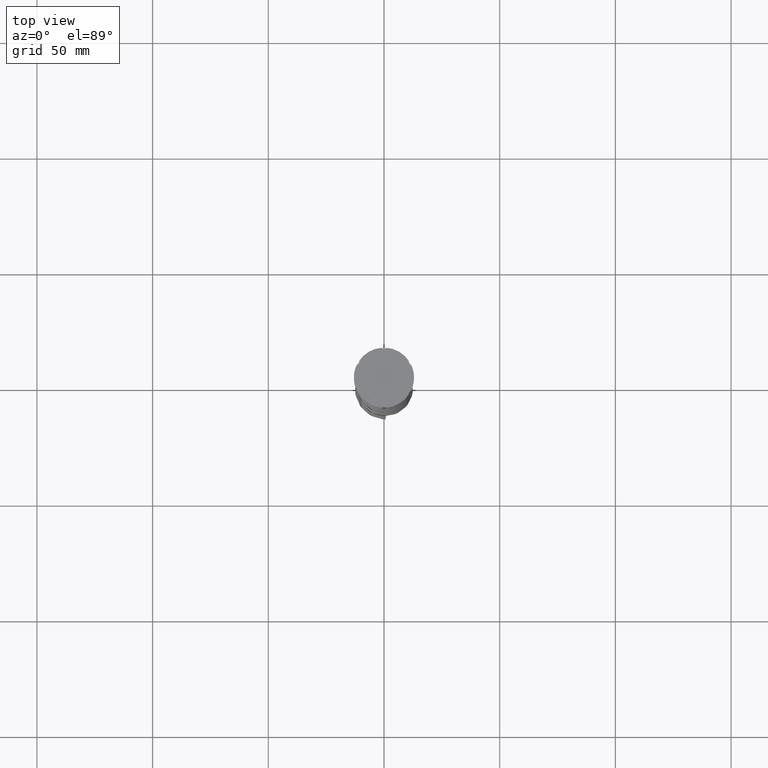
[diagram: clean part render]
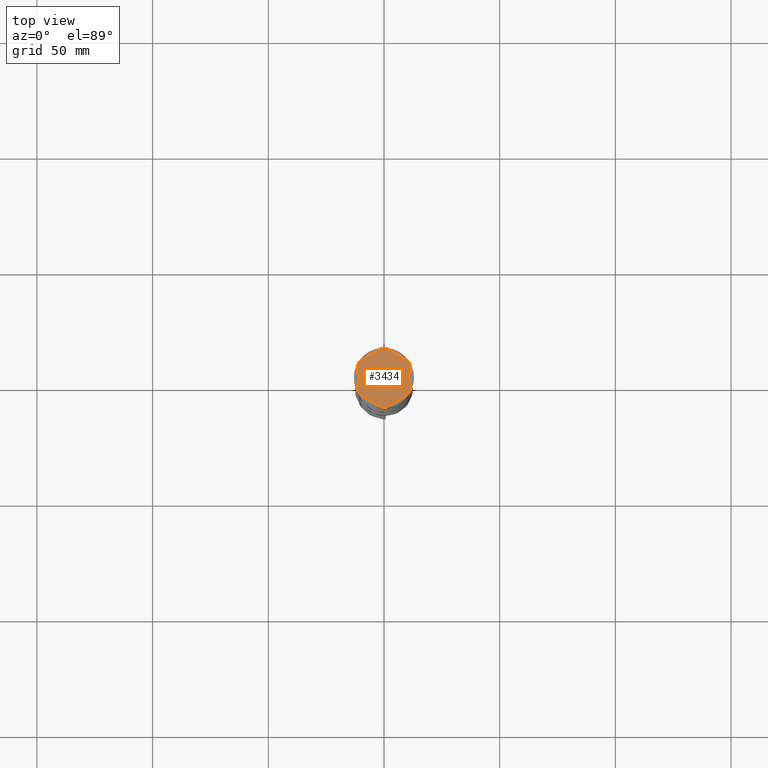
[diagram: same view with one face highlighted and labeled with its STEP entity id]
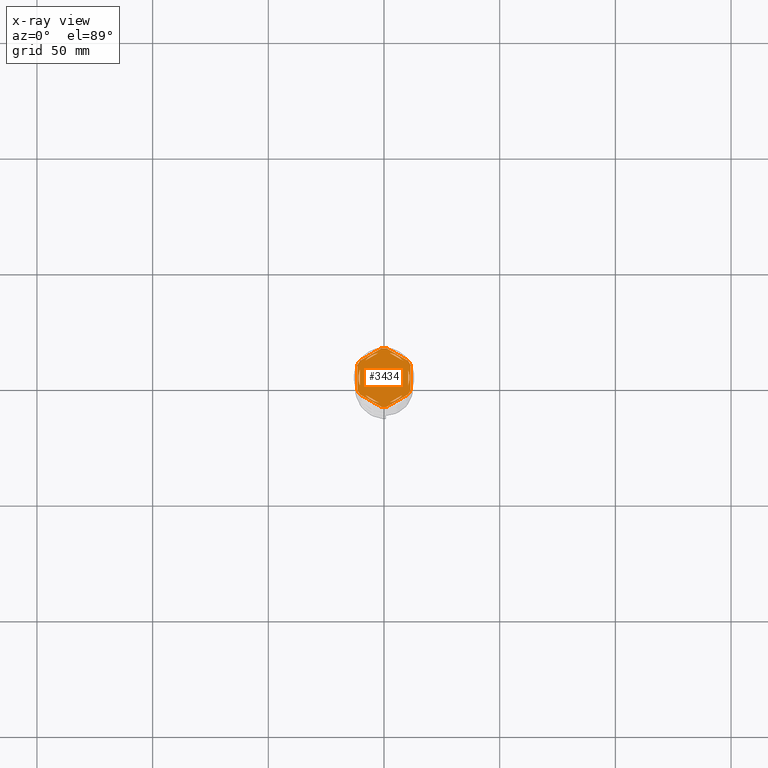
[diagram: x-ray of the same camera — body ghosted, the highlighted face saturated]
A machine part, top view. The second image highlights one B-rep face of the part: STEP entity #3434.
The next image is the same camera in x-ray: the body ghosted, the highlighted face saturated — about 0% of this face is hidden behind the body in this view.
In plain terms, the highlighted planar face has unit normal (0, 0, 1).
Its self-contained STEP definition (entity closure, byte-faithful):
#71 = EDGE_CURVE ( 'NONE', #2179, #955, #2401, .T. ) ;
#83 = CARTESIAN_POINT ( 'NONE',  ( -11.50000000000000000, -6.639528095680696573, -1.000000000000000000 ) ) ;
#108 = DIRECTION ( 'NONE',  ( -0.8660254037844385966, -0.5000000000000001110, 0.000000000000000000 ) ) ;
#111 = CIRCLE ( 'NONE', #1790, 12.69999999999999929 ) ;
#115 = AXIS2_PLACEMENT_3D ( 'NONE', #4085, #3760, #965 ) ;
#132 = VERTEX_POINT ( 'NONE', #1454 ) ;
#133 = DIRECTION ( 'NONE',  ( 0.000000000000000000, 0.000000000000000000, 1.000000000000000000 ) ) ;
#151 = AXIS2_PLACEMENT_3D ( 'NONE', #2047, #4432, #1984 ) ;
#157 = ORIENTED_EDGE ( 'NONE', *, *, #4389, .T. ) ;
#171 = VERTEX_POINT ( 'NONE', #2535 ) ;
#185 = ORIENTED_EDGE ( 'NONE', *, *, #2726, .F. ) ;
#209 = VERTEX_POINT ( 'NONE', #3569 ) ;
#220 = DIRECTION ( 'NONE',  ( 1.000000000000000000, 0.000000000000000000, 0.000000000000000000 ) ) ;
#289 = VERTEX_POINT ( 'NONE', #4092 ) ;
#324 = VERTEX_POINT ( 'NONE', #718 ) ;
#346 = EDGE_CURVE ( 'NONE', #324, #3405, #652, .T. ) ;
#368 = ORIENTED_EDGE ( 'NONE', *, *, #2586, .T. ) ;
#386 = CARTESIAN_POINT ( 'NONE',  ( 11.49999999999999822, 5.388877434122992582, -1.000000000000000000 ) ) ;
#429 = ORIENTED_EDGE ( 'NONE', *, *, #487, .T. ) ;
#453 = DIRECTION ( 'NONE',  ( 0.8660254037844387076, -0.4999999999999999445, 0.000000000000000000 ) ) ;
#487 = EDGE_CURVE ( 'NONE', #571, #209, #1815, .T. ) ;
#489 = AXIS2_PLACEMENT_3D ( 'NONE', #3202, #2753, #3493 ) ;
#511 = CIRCLE ( 'NONE', #4211, 11.00000000000000000 ) ;
#525 = FACE_BOUND ( 'NONE', #3260, .T. ) ;
#526 = VERTEX_POINT ( 'NONE', #1879 ) ;
#530 = ORIENTED_EDGE ( 'NONE', *, *, #606, .F. ) ;
#555 = CARTESIAN_POINT ( 'NONE',  ( 0.000000000000000000, 0.000000000000000000, -1.000000000000000000 ) ) ;
#571 = VERTEX_POINT ( 'NONE', #2702 ) ;
#577 = VERTEX_POINT ( 'NONE', #3041 ) ;
#582 = EDGE_CURVE ( 'NONE', #4305, #526, #2907, .T. ) ;
#586 = VECTOR ( 'NONE', #1866, 1000.000000000000227 ) ;
#606 = EDGE_CURVE ( 'NONE', #2362, #3405, #1673, .T. ) ;
#644 = DIRECTION ( 'NONE',  ( 0.000000000000000000, 1.000000000000000000, 0.000000000000000000 ) ) ;
#652 = LINE ( 'NONE', #1680, #2834 ) ;
#659 = AXIS2_PLACEMENT_3D ( 'NONE', #1231, #1548, #4047 ) ;
#692 = LINE ( 'NONE', #4491, #3280 ) ;
#702 = CARTESIAN_POINT ( 'NONE',  ( -10.41690475583121334, -7.264853426459548125, -1.000000000000000000 ) ) ;
#718 = CARTESIAN_POINT ( 'NONE',  ( 10.41690475583121156, 7.264853426459550789, -1.000000000000000000 ) ) ;
#726 = ORIENTED_EDGE ( 'NONE', *, *, #1944, .F. ) ;
#743 = EDGE_CURVE ( 'NONE', #4154, #577, #1897, .T. ) ;
#784 = VERTEX_POINT ( 'NONE', #2293 ) ;
#789 = CARTESIAN_POINT ( 'NONE',  ( -10.49999999999999822, -3.278719262151000624, -1.000000000000000888 ) ) ;
#798 = LINE ( 'NONE', #4300, #4176 ) ;
#832 = ORIENTED_EDGE ( 'NONE', *, *, #3743, .F. ) ;
#860 = AXIS2_PLACEMENT_3D ( 'NONE', #2115, #1399, #3836 ) ;
#868 = CARTESIAN_POINT ( 'NONE',  ( 2.410545827099865868, -10.73262637081210791, -1.000000000000000888 ) ) ;
#883 = AXIS2_PLACEMENT_3D ( 'NONE', #3703, #4385, #951 ) ;
#892 = ORIENTED_EDGE ( 'NONE', *, *, #1299, .T. ) ;
#893 = CARTESIAN_POINT ( 'NONE',  ( 1.083095244168781557, 12.65373086058254160, -1.000000000000000000 ) ) ;
#951 = DIRECTION ( 'NONE',  ( 1.000000000000000000, -1.776356839400250465E-14, 0.000000000000000000 ) ) ;
#955 = VERTEX_POINT ( 'NONE', #3205 ) ;
#965 = DIRECTION ( 'NONE',  ( 1.000000000000000000, 0.000000000000000000, 0.000000000000000000 ) ) ;
#968 = EDGE_CURVE ( 'NONE', #3091, #1061, #3251, .T. ) ;
#992 = CIRCLE ( 'NONE', #4477, 11.00000000000000000 ) ;
#1020 = CIRCLE ( 'NONE', #151, 12.69999999999999929 ) ;
#1061 = VERTEX_POINT ( 'NONE', #3978 ) ;
#1093 = DIRECTION ( 'NONE',  ( -0.000000000000000000, -0.000000000000000000, -1.000000000000000000 ) ) ;
#1100 = EDGE_CURVE ( 'NONE', #132, #4025, #511, .T. ) ;
#1143 = ORIENTED_EDGE ( 'NONE', *, *, #2023, .F. ) ;
#1161 = FACE_BOUND ( 'NONE', #3771, .T. ) ;
#1163 = LINE ( 'NONE', #2146, #1355 ) ;
#1166 = EDGE_CURVE ( 'NONE', #324, #3183, #1604, .T. ) ;
#1228 = EDGE_LOOP ( 'NONE', ( #4156, #3704 ) ) ;
#1231 = CARTESIAN_POINT ( 'NONE',  ( 0.000000000000000000, 0.000000000000000000, -1.000000000000000000 ) ) ;
#1272 = EDGE_CURVE ( 'NONE', #526, #4305, #4306, .T. ) ;
#1299 = EDGE_CURVE ( 'NONE', #3227, #3183, #3215, .T. ) ;
#1355 = VECTOR ( 'NONE', #2196, 999.9999999999998863 ) ;
#1368 = LINE ( 'NONE', #1649, #2526 ) ;
#1390 = CARTESIAN_POINT ( 'NONE',  ( 0.000000000000000000, 0.000000000000000000, -1.000000000000000000 ) ) ;
#1399 = DIRECTION ( 'NONE',  ( 0.000000000000000000, 0.000000000000000000, 1.000000000000000000 ) ) ;
#1439 = DIRECTION ( 'NONE',  ( 0.8660254037844385966, 0.5000000000000001110, -0.000000000000000000 ) ) ;
#1452 = ORIENTED_EDGE ( 'NONE', *, *, #3768, .F. ) ;
#1454 = CARTESIAN_POINT ( 'NONE',  ( 8.089454172900138573, 7.453907108661105063, -1.000000000000000888 ) ) ;
#1459 = CARTESIAN_POINT ( 'NONE',  ( 10.49999999999999289, -6.062177826491073063, -1.000000000000000888 ) ) ;
#1523 = DIRECTION ( 'NONE',  ( 1.000000000000000000, 0.000000000000000000, -0.000000000000000000 ) ) ;
#1534 = CARTESIAN_POINT ( 'NONE',  ( -1.734723475976807094E-15, 12.12435565298214080, -1.000000000000000888 ) ) ;
#1548 = DIRECTION ( 'NONE',  ( 0.000000000000000000, 0.000000000000000000, 1.000000000000000000 ) ) ;
#1587 = CARTESIAN_POINT ( 'NONE',  ( 10.49999999999999467, 3.278719262151012170, -1.000000000000000888 ) ) ;
#1591 = ORIENTED_EDGE ( 'NONE', *, *, #2797, .F. ) ;
#1602 = DIRECTION ( 'NONE',  ( 1.000000000000000000, 1.243449787580175325E-14, 0.000000000000000000 ) ) ;
#1604 = CIRCLE ( 'NONE', #883, 12.69999999999999929 ) ;
#1605 = ORIENTED_EDGE ( 'NONE', *, *, #346, .T. ) ;
#1649 = CARTESIAN_POINT ( 'NONE',  ( -10.49999999999999822, 6.062177826491068622, -1.000000000000000888 ) ) ;
#1668 = DIRECTION ( 'NONE',  ( 0.000000000000000000, 0.000000000000000000, 1.000000000000000000 ) ) ;
#1673 = CIRCLE ( 'NONE', #1969, 12.69999999999999929 ) ;
#1680 = CARTESIAN_POINT ( 'NONE',  ( 11.50000000000000000, 6.639528095680698350, -1.000000000000000000 ) ) ;
#1726 = VERTEX_POINT ( 'NONE', #3096 ) ;
#1790 = AXIS2_PLACEMENT_3D ( 'NONE', #1390, #2785, #220 ) ;
#1815 = LINE ( 'NONE', #4172, #3844 ) ;
#1822 = CARTESIAN_POINT ( 'NONE',  ( 11.49999999999999822, -5.388877434122996135, -1.000000000000000000 ) ) ;
#1830 = EDGE_CURVE ( 'NONE', #2377, #3748, #4364, .T. ) ;
#1836 = ORIENTED_EDGE ( 'NONE', *, *, #1100, .F. ) ;
#1866 = DIRECTION ( 'NONE',  ( 0.8660254037844387076, -0.4999999999999997780, 0.000000000000000000 ) ) ;
#1868 = FACE_BOUND ( 'NONE', #3101, .T. ) ;
#1879 = CARTESIAN_POINT ( 'NONE',  ( -8.089454172900135021, 7.453907108661106840, -1.000000000000000888 ) ) ;
#1897 = LINE ( 'NONE', #1459, #3774 ) ;
#1944 = EDGE_CURVE ( 'NONE', #3227, #209, #1020, .T. ) ;
#1958 = DIRECTION ( 'NONE',  ( 1.000000000000000000, 0.000000000000000000, 0.000000000000000000 ) ) ;
#1969 = AXIS2_PLACEMENT_3D ( 'NONE', #555, #3735, #1602 ) ;
#1984 = DIRECTION ( 'NONE',  ( 1.000000000000000000, 0.000000000000000000, 0.000000000000000000 ) ) ;
#1992 = ORIENTED_EDGE ( 'NONE', *, *, #582, .F. ) ;
#2023 = EDGE_CURVE ( 'NONE', #955, #2179, #692, .T. ) ;
#2047 = CARTESIAN_POINT ( 'NONE',  ( 0.000000000000000000, 0.000000000000000000, -1.000000000000000000 ) ) ;
#2083 = CIRCLE ( 'NONE', #115, 12.69999999999999929 ) ;
#2084 = LINE ( 'NONE', #3107, #4057 ) ;
#2087 = DIRECTION ( 'NONE',  ( -0.8660254037844388186, 0.4999999999999997224, 0.000000000000000000 ) ) ;
#2115 = CARTESIAN_POINT ( 'NONE',  ( 0.000000000000000000, 0.000000000000000000, -1.000000000000000000 ) ) ;
#2146 = CARTESIAN_POINT ( 'NONE',  ( -2.602085213965210642E-15, -12.12435565298214080, -1.000000000000000888 ) ) ;
#2177 = CARTESIAN_POINT ( 'NONE',  ( 11.49999999999999822, -6.639528095680694797, -1.000000000000000000 ) ) ;
#2179 = VERTEX_POINT ( 'NONE', #2642 ) ;
#2196 = DIRECTION ( 'NONE',  ( -0.8660254037844387076, -0.4999999999999999445, 0.000000000000000000 ) ) ;
#2215 = PLANE ( 'NONE',  #4190 ) ;
#2293 = CARTESIAN_POINT ( 'NONE',  ( -11.50000000000000000, 5.388877434122992582, -1.000000000000000000 ) ) ;
#2316 = DIRECTION ( 'NONE',  ( 0.000000000000000000, 0.000000000000000000, 1.000000000000000000 ) ) ;
#2319 = CIRCLE ( 'NONE', #489, 11.00000000000000000 ) ;
#2327 = DIRECTION ( 'NONE',  ( 0.000000000000000000, 0.000000000000000000, 1.000000000000000000 ) ) ;
#2362 = VERTEX_POINT ( 'NONE', #4265 ) ;
#2377 = VERTEX_POINT ( 'NONE', #3819 ) ;
#2391 = ORIENTED_EDGE ( 'NONE', *, *, #1830, .F. ) ;
#2401 = CIRCLE ( 'NONE', #4426, 11.00000000000000000 ) ;
#2445 = EDGE_CURVE ( 'NONE', #784, #1726, #111, .T. ) ;
#2473 = DIRECTION ( 'NONE',  ( 1.306360520641008153E-16, 1.000000000000000000, 0.000000000000000000 ) ) ;
#2500 = DIRECTION ( 'NONE',  ( 0.000000000000000000, -1.000000000000000000, 0.000000000000000000 ) ) ;
#2526 = VECTOR ( 'NONE', #644, 1000.000000000000000 ) ;
#2535 = CARTESIAN_POINT ( 'NONE',  ( 8.089454172900135021, -7.453907108661109504, -1.000000000000000888 ) ) ;
#2550 = CARTESIAN_POINT ( 'NONE',  ( 2.410545827099861871, 10.73262637081210791, -1.000000000000000888 ) ) ;
#2557 = FACE_BOUND ( 'NONE', #1228, .T. ) ;
#2560 = EDGE_CURVE ( 'NONE', #3091, #289, #4112, .T. ) ;
#2586 = EDGE_CURVE ( 'NONE', #2362, #1726, #798, .T. ) ;
#2605 = DIRECTION ( 'NONE',  ( 0.000000000000000000, 0.000000000000000000, 1.000000000000000000 ) ) ;
#2621 = EDGE_CURVE ( 'NONE', #171, #3373, #1163, .T. ) ;
#2642 = CARTESIAN_POINT ( 'NONE',  ( -8.089454172900133244, -7.453907108661111280, -1.000000000000000888 ) ) ;
#2664 = EDGE_CURVE ( 'NONE', #4025, #132, #3571, .T. ) ;
#2701 = AXIS2_PLACEMENT_3D ( 'NONE', #4374, #2316, #4034 ) ;
#2702 = CARTESIAN_POINT ( 'NONE',  ( 1.083095244168774673, -12.65373086058253982, -1.000000000000000000 ) ) ;
#2715 = DIRECTION ( 'NONE',  ( 0.8660254037844385966, 0.4999999999999999445, 0.000000000000000000 ) ) ;
#2726 = EDGE_CURVE ( 'NONE', #571, #1061, #2083, .T. ) ;
#2753 = DIRECTION ( 'NONE',  ( 0.000000000000000000, 0.000000000000000000, 1.000000000000000000 ) ) ;
#2785 = DIRECTION ( 'NONE',  ( -0.000000000000000000, -0.000000000000000000, -1.000000000000000000 ) ) ;
#2797 = EDGE_CURVE ( 'NONE', #3983, #2377, #1368, .T. ) ;
#2834 = VECTOR ( 'NONE', #2087, 1000.000000000000000 ) ;
#2836 = ORIENTED_EDGE ( 'NONE', *, *, #968, .T. ) ;
#2851 = DIRECTION ( 'NONE',  ( -1.430775808321104180E-16, -1.000000000000000000, 0.000000000000000000 ) ) ;
#2907 = CIRCLE ( 'NONE', #2701, 11.00000000000000000 ) ;
#3041 = CARTESIAN_POINT ( 'NONE',  ( 10.49999999999999467, -3.278719262151014835, -1.000000000000000888 ) ) ;
#3060 = DIRECTION ( 'NONE',  ( 1.000000000000000000, 0.000000000000000000, 0.000000000000000000 ) ) ;
#3091 = VERTEX_POINT ( 'NONE', #702 ) ;
#3096 = CARTESIAN_POINT ( 'NONE',  ( -10.41690475583121689, 7.264853426459546348, -1.000000000000000000 ) ) ;
#3101 = EDGE_LOOP ( 'NONE', ( #1992, #3439 ) ) ;
#3107 = CARTESIAN_POINT ( 'NONE',  ( -11.50000000000000000, 6.639528095680691244, -1.000000000000000000 ) ) ;
#3141 = CARTESIAN_POINT ( 'NONE',  ( 0.000000000000000000, 0.000000000000000000, -1.000000000000000000 ) ) ;
#3183 = VERTEX_POINT ( 'NONE', #386 ) ;
#3202 = CARTESIAN_POINT ( 'NONE',  ( 0.000000000000000000, 0.000000000000000000, -1.000000000000000000 ) ) ;
#3205 = CARTESIAN_POINT ( 'NONE',  ( -2.410545827099876082, -10.73262637081210435, -1.000000000000000888 ) ) ;
#3215 = LINE ( 'NONE', #2177, #3778 ) ;
#3227 = VERTEX_POINT ( 'NONE', #1822 ) ;
#3251 = LINE ( 'NONE', #83, #586 ) ;
#3254 = CARTESIAN_POINT ( 'NONE',  ( 0.000000000000000000, 0.000000000000000000, -1.000000000000000000 ) ) ;
#3260 = EDGE_LOOP ( 'NONE', ( #3835, #1143 ) ) ;
#3280 = VECTOR ( 'NONE', #4225, 1000.000000000000000 ) ;
#3310 = ORIENTED_EDGE ( 'NONE', *, *, #2445, .F. ) ;
#3318 = CARTESIAN_POINT ( 'NONE',  ( 0.000000000000000000, 0.000000000000000000, -1.000000000000000000 ) ) ;
#3373 = VERTEX_POINT ( 'NONE', #868 ) ;
#3384 = EDGE_CURVE ( 'NONE', #577, #4154, #992, .T. ) ;
#3392 = CARTESIAN_POINT ( 'NONE',  ( 0.000000000000000000, 0.000000000000000000, -1.000000000000000000 ) ) ;
#3405 = VERTEX_POINT ( 'NONE', #893 ) ;
#3434 = ADVANCED_FACE ( 'NONE', ( #1161, #2557, #4318, #525, #3932, #1868, #3591 ), #2215, .T. ) ;
#3439 = ORIENTED_EDGE ( 'NONE', *, *, #1272, .F. ) ;
#3493 = DIRECTION ( 'NONE',  ( 1.000000000000000000, 0.000000000000000000, 0.000000000000000000 ) ) ;
#3539 = ORIENTED_EDGE ( 'NONE', *, *, #2560, .F. ) ;
#3569 = CARTESIAN_POINT ( 'NONE',  ( 10.41690475583121867, -7.264853426459537467, -1.000000000000000000 ) ) ;
#3571 = LINE ( 'NONE', #3913, #3820 ) ;
#3580 = ORIENTED_EDGE ( 'NONE', *, *, #1166, .F. ) ;
#3591 = FACE_OUTER_BOUND ( 'NONE', #4136, .T. ) ;
#3593 = DIRECTION ( 'NONE',  ( 1.000000000000000000, 7.105427357601001859E-15, 0.000000000000000000 ) ) ;
#3605 = AXIS2_PLACEMENT_3D ( 'NONE', #3141, #1093, #3593 ) ;
#3697 = ORIENTED_EDGE ( 'NONE', *, *, #2621, .F. ) ;
#3703 = CARTESIAN_POINT ( 'NONE',  ( 0.000000000000000000, 0.000000000000000000, -1.000000000000000000 ) ) ;
#3704 = ORIENTED_EDGE ( 'NONE', *, *, #743, .F. ) ;
#3725 = EDGE_LOOP ( 'NONE', ( #2391, #1591, #1452 ) ) ;
#3735 = DIRECTION ( 'NONE',  ( -0.000000000000000000, -0.000000000000000000, -1.000000000000000000 ) ) ;
#3743 = EDGE_CURVE ( 'NONE', #3373, #171, #4194, .T. ) ;
#3748 = VERTEX_POINT ( 'NONE', #4134 ) ;
#3760 = DIRECTION ( 'NONE',  ( -0.000000000000000000, -0.000000000000000000, -1.000000000000000000 ) ) ;
#3768 = EDGE_CURVE ( 'NONE', #3748, #3983, #2319, .T. ) ;
#3771 = EDGE_LOOP ( 'NONE', ( #1836, #3989 ) ) ;
#3774 = VECTOR ( 'NONE', #2851, 1000.000000000000000 ) ;
#3778 = VECTOR ( 'NONE', #2473, 1000.000000000000000 ) ;
#3819 = CARTESIAN_POINT ( 'NONE',  ( -10.49999999999999822, 3.278719262151000624, -1.000000000000000888 ) ) ;
#3820 = VECTOR ( 'NONE', #453, 999.9999999999998863 ) ;
#3835 = ORIENTED_EDGE ( 'NONE', *, *, #71, .F. ) ;
#3836 = DIRECTION ( 'NONE',  ( 1.000000000000000000, 0.000000000000000000, 0.000000000000000000 ) ) ;
#3844 = VECTOR ( 'NONE', #2715, 1000.000000000000114 ) ;
#3913 = CARTESIAN_POINT ( 'NONE',  ( 10.49999999999999467, 6.062177826491072175, -1.000000000000000888 ) ) ;
#3924 = VECTOR ( 'NONE', #1439, 1000.000000000000000 ) ;
#3932 = FACE_BOUND ( 'NONE', #3725, .T. ) ;
#3978 = CARTESIAN_POINT ( 'NONE',  ( -1.083095244168779780, -12.65373086058253982, -1.000000000000000000 ) ) ;
#3983 = VERTEX_POINT ( 'NONE', #789 ) ;
#3989 = ORIENTED_EDGE ( 'NONE', *, *, #2664, .F. ) ;
#4007 = CARTESIAN_POINT ( 'NONE',  ( 0.000000000000000000, 0.000000000000000000, -1.000000000000000000 ) ) ;
#4025 = VERTEX_POINT ( 'NONE', #2550 ) ;
#4034 = DIRECTION ( 'NONE',  ( 1.000000000000000000, 0.000000000000000000, 0.000000000000000000 ) ) ;
#4047 = DIRECTION ( 'NONE',  ( 1.000000000000000000, 0.000000000000000000, 0.000000000000000000 ) ) ;
#4057 = VECTOR ( 'NONE', #2500, 1000.000000000000000 ) ;
#4085 = CARTESIAN_POINT ( 'NONE',  ( 0.000000000000000000, 0.000000000000000000, -1.000000000000000000 ) ) ;
#4092 = CARTESIAN_POINT ( 'NONE',  ( -11.50000000000000000, -5.388877434122992582, -1.000000000000000000 ) ) ;
#4105 = EDGE_LOOP ( 'NONE', ( #832, #3697 ) ) ;
#4112 = CIRCLE ( 'NONE', #3605, 12.69999999999999929 ) ;
#4134 = CARTESIAN_POINT ( 'NONE',  ( -11.00000000000000000, 0.000000000000000000, -1.000000000000000000 ) ) ;
#4136 = EDGE_LOOP ( 'NONE', ( #892, #3580, #1605, #530, #368, #3310, #157, #3539, #2836, #185, #429, #726 ) ) ;
#4154 = VERTEX_POINT ( 'NONE', #1587 ) ;
#4156 = ORIENTED_EDGE ( 'NONE', *, *, #3384, .F. ) ;
#4172 = CARTESIAN_POINT ( 'NONE',  ( 5.612359739892467248E-18, -13.27905619136138959, -1.000000000000000000 ) ) ;
#4176 = VECTOR ( 'NONE', #108, 1000.000000000000114 ) ;
#4190 = AXIS2_PLACEMENT_3D ( 'NONE', #3254, #133, #1523 ) ;
#4194 = CIRCLE ( 'NONE', #860, 11.00000000000000000 ) ;
#4211 = AXIS2_PLACEMENT_3D ( 'NONE', #3318, #2327, #1958 ) ;
#4225 = DIRECTION ( 'NONE',  ( -0.8660254037844384856, 0.5000000000000002220, 0.000000000000000000 ) ) ;
#4265 = CARTESIAN_POINT ( 'NONE',  ( -1.083095244168783333, 12.65373086058254160, -1.000000000000000000 ) ) ;
#4275 = DIRECTION ( 'NONE',  ( 1.000000000000000000, 0.000000000000000000, 0.000000000000000000 ) ) ;
#4300 = CARTESIAN_POINT ( 'NONE',  ( 0.000000000000000000, 13.27905619136138959, -1.000000000000000000 ) ) ;
#4305 = VERTEX_POINT ( 'NONE', #4423 ) ;
#4306 = LINE ( 'NONE', #1534, #3924 ) ;
#4318 = FACE_BOUND ( 'NONE', #4105, .T. ) ;
#4364 = CIRCLE ( 'NONE', #659, 11.00000000000000000 ) ;
#4374 = CARTESIAN_POINT ( 'NONE',  ( 0.000000000000000000, 0.000000000000000000, -1.000000000000000000 ) ) ;
#4385 = DIRECTION ( 'NONE',  ( -0.000000000000000000, -0.000000000000000000, -1.000000000000000000 ) ) ;
#4389 = EDGE_CURVE ( 'NONE', #784, #289, #2084, .T. ) ;
#4423 = CARTESIAN_POINT ( 'NONE',  ( -2.410545827099867200, 10.73262637081210613, -1.000000000000000888 ) ) ;
#4426 = AXIS2_PLACEMENT_3D ( 'NONE', #3392, #1668, #3060 ) ;
#4432 = DIRECTION ( 'NONE',  ( -0.000000000000000000, -0.000000000000000000, -1.000000000000000000 ) ) ;
#4477 = AXIS2_PLACEMENT_3D ( 'NONE', #4007, #2605, #4275 ) ;
#4491 = CARTESIAN_POINT ( 'NONE',  ( -10.49999999999999822, -6.062177826491068622, -1.000000000000000888 ) ) ;